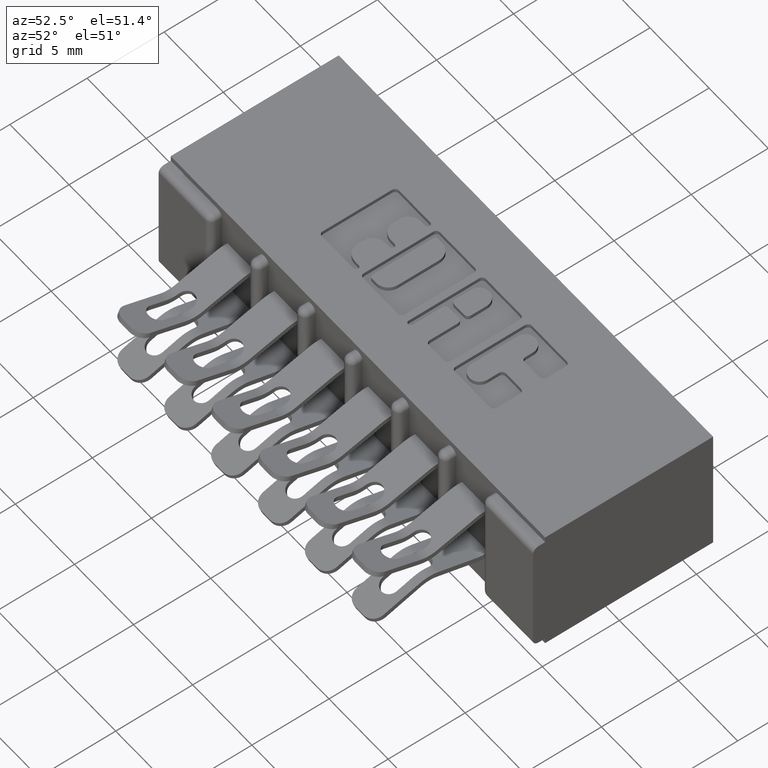
[diagram: clean part render]
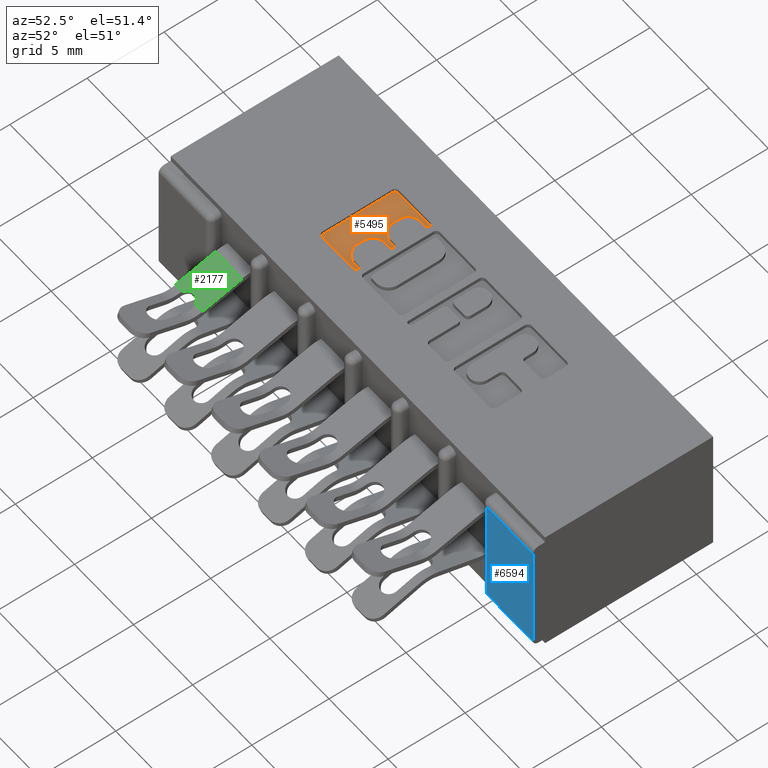
[diagram: same view with three faces highlighted in distinct colors, each labeled with its STEP entity id]
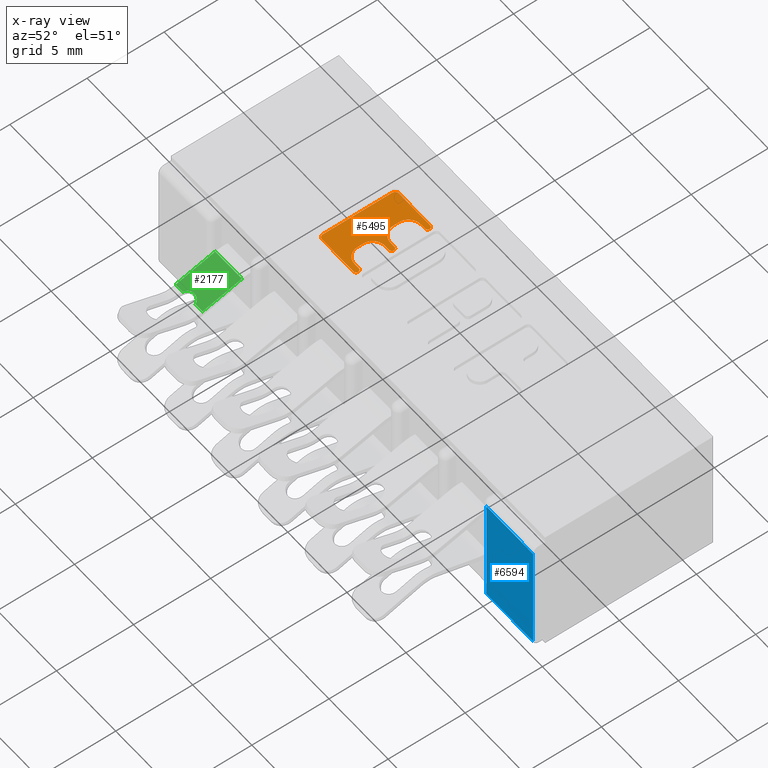
[diagram: x-ray of the same camera — body ghosted, the three highlighted faces saturated]
A machine part, auxiliary view with three faces highlighted in distinct colors.
The next image is the same camera in x-ray (body ghosted, the three faces saturated) — at least one of them is partly hidden behind the body in this view.
Their STEP definitions:

[orange] entity #5495 — the highlighted planar face has unit normal (0, 0, 1).
#74 = DIRECTION ( 'NONE',  ( 0.0000000000000000000, -1.000000000000000000, 0.0000000000000000000 ) ) ;
#175 = DIRECTION ( 'NONE',  ( 1.000000000000000000, 0.0000000000000000000, 0.0000000000000000000 ) ) ;
#191 = EDGE_CURVE ( 'NONE', #9915, #8784, #9637, .T. ) ;
#275 = LINE ( 'NONE', #9829, #7740 ) ;
#307 = VERTEX_POINT ( 'NONE', #3789 ) ;
#461 = CARTESIAN_POINT ( 'NONE',  ( 0.7610045756779737500, 0.2455000000000231700, -0.01000000000000000000 ) ) ;
#468 = ORIENTED_EDGE ( 'NONE', *, *, #8584, .T. ) ;
#576 = AXIS2_PLACEMENT_3D ( 'NONE', #806, #4319, #7650 ) ;
#643 = EDGE_CURVE ( 'NONE', #5747, #9515, #4340, .T. ) ;
#678 = DIRECTION ( 'NONE',  ( -0.0000000000000000000, 0.0000000000000000000, 1.000000000000000000 ) ) ;
#806 = CARTESIAN_POINT ( 'NONE',  ( 0.7541336065353102500, 0.2455000000000231700, -0.01000000000000000000 ) ) ;
#892 = CIRCLE ( 'NONE', #7469, 0.006870969142662229500 ) ;
#962 = VECTOR ( 'NONE', #5504, 39.37007874015748100 ) ;
#968 = VERTEX_POINT ( 'NONE', #1269 ) ;
#975 = ORIENTED_EDGE ( 'NONE', *, *, #2741, .F. ) ;
#984 = LINE ( 'NONE', #10345, #9291 ) ;
#1000 = AXIS2_PLACEMENT_3D ( 'NONE', #9095, #7402, #3938 ) ;
#1013 = DIRECTION ( 'NONE',  ( -0.0000000000000000000, 0.0000000000000000000, 1.000000000000000000 ) ) ;
#1065 = AXIS2_PLACEMENT_3D ( 'NONE', #10837, #2306, #3168 ) ;
#1160 = LINE ( 'NONE', #1514, #6492 ) ;
#1228 = VERTEX_POINT ( 'NONE', #10238 ) ;
#1269 = CARTESIAN_POINT ( 'NONE',  ( 0.7406370600051257500, 0.3299147637527385400, -0.01000000000000000000 ) ) ;
#1334 = DIRECTION ( 'NONE',  ( 1.000000000000000000, 0.0000000000000000000, 0.0000000000000000000 ) ) ;
#1366 = VERTEX_POINT ( 'NONE', #6070 ) ;
#1439 = DIRECTION ( 'NONE',  ( -0.0000000000000000000, 0.0000000000000000000, 1.000000000000000000 ) ) ;
#1480 = AXIS2_PLACEMENT_3D ( 'NONE', #4797, #1439, #1580 ) ;
#1510 = LINE ( 'NONE', #7800, #962 ) ;
#1514 = CARTESIAN_POINT ( 'NONE',  ( -1.013135022034653000E-015, 0.1473432979619833400, -0.01000000000000000000 ) ) ;
#1540 = CIRCLE ( 'NONE', #576, 0.006870969142663458500 ) ;
#1579 = ORIENTED_EDGE ( 'NONE', *, *, #191, .T. ) ;
#1580 = DIRECTION ( 'NONE',  ( 1.000000000000000000, 0.0000000000000000000, 0.0000000000000000000 ) ) ;
#1730 = EDGE_CURVE ( 'NONE', #3152, #5751, #7563, .T. ) ;
#2013 = CARTESIAN_POINT ( 'NONE',  ( 0.7541336065353515500, 0.3367857328953891000, -0.01000000000000000000 ) ) ;
#2016 = CIRCLE ( 'NONE', #1065, 0.006870969142663458500 ) ;
#2101 = CARTESIAN_POINT ( 'NONE',  ( 0.7406370600051098700, 0.1924953808994932000, -0.01000000000000000000 ) ) ;
#2137 = VERTEX_POINT ( 'NONE', #461 ) ;
#2306 = DIRECTION ( 'NONE',  ( -0.0000000000000000000, 0.0000000000000000000, 1.000000000000000000 ) ) ;
#2394 = CARTESIAN_POINT ( 'NONE',  ( 0.7406370600050843400, 0.2837811137948611500, -0.01000000000000000000 ) ) ;
#2434 = EDGE_CURVE ( 'NONE', #9195, #7914, #892, .T. ) ;
#2448 = ORIENTED_EDGE ( 'NONE', *, *, #7297, .T. ) ;
#2457 = AXIS2_PLACEMENT_3D ( 'NONE', #2394, #678, #8469 ) ;
#2531 = DIRECTION ( 'NONE',  ( -1.000000000000000000, 0.0000000000000000000, 0.0000000000000000000 ) ) ;
#2536 = EDGE_CURVE ( 'NONE', #968, #9634, #7022, .T. ) ;
#2673 = CARTESIAN_POINT ( 'NONE',  ( 0.6498421106199383500, 0.3338410318342129300, -0.01000000000000000000 ) ) ;
#2738 = CARTESIAN_POINT ( 'NONE',  ( 0.7541336064154146000, 0.1610852362473130200, -0.01000000000000000000 ) ) ;
#2741 = EDGE_CURVE ( 'NONE', #5747, #5037, #10505, .T. ) ;
#2771 = EDGE_CURVE ( 'NONE', #5751, #9195, #1160, .T. ) ;
#2786 = VERTEX_POINT ( 'NONE', #7697 ) ;
#2805 = DIRECTION ( 'NONE',  ( -1.000000000000000000, -1.189163988687022500E-013, 0.0000000000000000000 ) ) ;
#2848 = VERTEX_POINT ( 'NONE', #5242 ) ;
#2877 = DIRECTION ( 'NONE',  ( 1.000000000000000000, 0.0000000000000000000, 0.0000000000000000000 ) ) ;
#3047 = CARTESIAN_POINT ( 'NONE',  ( 0.6400264404161156700, 0.1571589681657927500, -0.01000000000000000000 ) ) ;
#3080 = ORIENTED_EDGE ( 'NONE', *, *, #6491, .T. ) ;
#3152 = VERTEX_POINT ( 'NONE', #3047 ) ;
#3168 = DIRECTION ( 'NONE',  ( 1.000000000000000000, 0.0000000000000000000, 0.0000000000000000000 ) ) ;
#3450 = LINE ( 'NONE', #9679, #5677 ) ;
#3502 = CARTESIAN_POINT ( 'NONE',  ( 0.7541336065353515500, 0.3367857328953891000, -0.01000000000000000000 ) ) ;
#3622 = DIRECTION ( 'NONE',  ( -0.0000000000000000000, 0.0000000000000000000, 1.000000000000000000 ) ) ;
#3707 = EDGE_CURVE ( 'NONE', #1228, #10980, #984, .T. ) ;
#3739 = EDGE_CURVE ( 'NONE', #2848, #9915, #10766, .T. ) ;
#3789 = CARTESIAN_POINT ( 'NONE',  ( 0.7406370600051098700, 0.1610852362473114100, -0.01000000000000000000 ) ) ;
#3841 = AXIS2_PLACEMENT_3D ( 'NONE', #5410, #1013, #4535 ) ;
#3927 = ORIENTED_EDGE ( 'NONE', *, *, #3739, .T. ) ;
#3938 = DIRECTION ( 'NONE',  ( 1.000000000000000000, 0.0000000000000000000, 0.0000000000000000000 ) ) ;
#4100 = CIRCLE ( 'NONE', #10052, 0.006870969142648433200 ) ;
#4319 = DIRECTION ( 'NONE',  ( -0.0000000000000000000, 0.0000000000000000000, 1.000000000000000000 ) ) ;
#4340 = LINE ( 'NONE', #11222, #6122 ) ;
#4456 = CIRCLE ( 'NONE', #6028, 0.006870969142662229500 ) ;
#4535 = DIRECTION ( 'NONE',  ( 1.000000000000000000, 0.0000000000000000000, 0.0000000000000000000 ) ) ;
#4536 = CARTESIAN_POINT ( 'NONE',  ( 0.7406370600050843400, 0.2523709691426866400, -0.01000000000000000000 ) ) ;
#4647 = EDGE_CURVE ( 'NONE', #2786, #10980, #7057, .T. ) ;
#4699 = CARTESIAN_POINT ( 'NONE',  ( 0.6498421106199383500, 0.3436567020380355600, -0.01000000000000000000 ) ) ;
#4711 = VECTOR ( 'NONE', #2805, 39.37007874015748100 ) ;
#4763 = AXIS2_PLACEMENT_3D ( 'NONE', #5960, #10283, #7571 ) ;
#4797 = CARTESIAN_POINT ( 'NONE',  ( 0.7406370600050843400, 0.2072188862052033700, -0.01000000000000000000 ) ) ;
#4827 = CARTESIAN_POINT ( 'NONE',  ( 0.7541336065353357900, 0.1542142671046507800, -0.01000000000000000000 ) ) ;
#4856 = FACE_OUTER_BOUND ( 'NONE', #7021, .T. ) ;
#4961 = EDGE_CURVE ( 'NONE', #2137, #1228, #2016, .T. ) ;
#5037 = VERTEX_POINT ( 'NONE', #7658 ) ;
#5071 = CARTESIAN_POINT ( 'NONE',  ( 0.6498421106199189200, 0.1473432979619878100, -0.01000000000000000000 ) ) ;
#5149 = ORIENTED_EDGE ( 'NONE', *, *, #4961, .T. ) ;
#5169 = CARTESIAN_POINT ( 'NONE',  ( 0.0000000000000000000, 0.3436567020380355600, -0.01000000000000000000 ) ) ;
#5212 = DIRECTION ( 'NONE',  ( -1.000000000000000000, 0.0000000000000000000, 0.0000000000000000000 ) ) ;
#5242 = CARTESIAN_POINT ( 'NONE',  ( 0.7541336065353515500, 0.3436567020380355600, -0.01000000000000000000 ) ) ;
#5255 = DIRECTION ( 'NONE',  ( 1.000000000000000000, 0.0000000000000000000, 0.0000000000000000000 ) ) ;
#5261 = ORIENTED_EDGE ( 'NONE', *, *, #4647, .F. ) ;
#5410 = CARTESIAN_POINT ( 'NONE',  ( 0.7406370600051257500, 0.2985046191005226200, -0.01000000000000000000 ) ) ;
#5495 = ADVANCED_FACE ( 'NONE', ( #4856 ), #7365, .T. ) ;
#5504 = DIRECTION ( 'NONE',  ( 0.0000000000000000000, 1.000000000000000000, -0.0000000000000000000 ) ) ;
#5677 = VECTOR ( 'NONE', #74, 39.37007874015748100 ) ;
#5733 = ORIENTED_EDGE ( 'NONE', *, *, #3707, .T. ) ;
#5747 = VERTEX_POINT ( 'NONE', #8509 ) ;
#5750 = ORIENTED_EDGE ( 'NONE', *, *, #2771, .T. ) ;
#5751 = VERTEX_POINT ( 'NONE', #5071 ) ;
#5939 = VECTOR ( 'NONE', #9563, 39.37007874015748100 ) ;
#5960 = CARTESIAN_POINT ( 'NONE',  ( 0.6498421106199224800, 0.1571589681657927500, -0.01000000000000000000 ) ) ;
#5964 = EDGE_CURVE ( 'NONE', #8547, #307, #7430, .T. ) ;
#5972 = CARTESIAN_POINT ( 'NONE',  ( 0.0000000000000000000, 0.3299147637527385400, -0.01000000000000000000 ) ) ;
#6028 = AXIS2_PLACEMENT_3D ( 'NONE', #4827, #10008, #9160 ) ;
#6054 = CARTESIAN_POINT ( 'NONE',  ( 0.7092269153529097100, 0.2985046191005226200, -0.01000000000000000000 ) ) ;
#6064 = AXIS2_PLACEMENT_3D ( 'NONE', #2101, #8316, #1334 ) ;
#6070 = CARTESIAN_POINT ( 'NONE',  ( 0.7610045756779999500, 0.3367857328953891000, -0.01000000000000000000 ) ) ;
#6122 = VECTOR ( 'NONE', #7830, 39.37007874015748100 ) ;
#6199 = EDGE_CURVE ( 'NONE', #8707, #307, #8633, .T. ) ;
#6351 = LINE ( 'NONE', #5972, #5939 ) ;
#6491 = EDGE_CURVE ( 'NONE', #968, #8767, #6351, .T. ) ;
#6492 = VECTOR ( 'NONE', #11066, 39.37007874015748100 ) ;
#6745 = VECTOR ( 'NONE', #2531, 39.37007874015748100 ) ;
#6831 = EDGE_CURVE ( 'NONE', #8784, #3152, #3450, .T. ) ;
#7021 = EDGE_LOOP ( 'NONE', ( #9133, #3080, #11185, #10479, #3927, #1579, #8302, #8876, #5750, #9518, #10722, #8961, #9746, #8217, #975, #10859, #2448, #5149, #5733, #5261, #468 ) ) ;
#7022 = CIRCLE ( 'NONE', #3841, 0.03141014465221592800 ) ;
#7057 = CIRCLE ( 'NONE', #2457, 0.03141014465217454400 ) ;
#7182 = DIRECTION ( 'NONE',  ( 1.000000000000000000, 0.0000000000000000000, 0.0000000000000000000 ) ) ;
#7195 = DIRECTION ( 'NONE',  ( 0.0000000000000000000, 1.000000000000000000, -0.0000000000000000000 ) ) ;
#7297 = EDGE_CURVE ( 'NONE', #9515, #2137, #1540, .T. ) ;
#7365 = PLANE ( 'NONE',  #1000 ) ;
#7402 = DIRECTION ( 'NONE',  ( -0.0000000000000000000, 0.0000000000000000000, 1.000000000000000000 ) ) ;
#7430 = LINE ( 'NONE', #10534, #4711 ) ;
#7469 = AXIS2_PLACEMENT_3D ( 'NONE', #10316, #7748, #5255 ) ;
#7563 = CIRCLE ( 'NONE', #4763, 0.009815670203805798900 ) ;
#7571 = DIRECTION ( 'NONE',  ( 1.000000000000000000, 0.0000000000000000000, 0.0000000000000000000 ) ) ;
#7626 = CARTESIAN_POINT ( 'NONE',  ( 0.7610045756779980600, 0.1542142671046507800, -0.01000000000000000000 ) ) ;
#7650 = DIRECTION ( 'NONE',  ( 1.000000000000000000, 0.0000000000000000000, 0.0000000000000000000 ) ) ;
#7658 = CARTESIAN_POINT ( 'NONE',  ( 0.7092269153529280300, 0.2072188862052033700, -0.01000000000000000000 ) ) ;
#7697 = CARTESIAN_POINT ( 'NONE',  ( 0.7092269153529097100, 0.2837811137948611500, -0.01000000000000000000 ) ) ;
#7740 = VECTOR ( 'NONE', #7195, 39.37007874015748100 ) ;
#7748 = DIRECTION ( 'NONE',  ( -0.0000000000000000000, 0.0000000000000000000, 1.000000000000000000 ) ) ;
#7800 = CARTESIAN_POINT ( 'NONE',  ( 0.7092269153529097100, 0.0000000000000000000, -0.01000000000000000000 ) ) ;
#7830 = DIRECTION ( 'NONE',  ( 1.000000000000000000, 0.0000000000000000000, 0.0000000000000000000 ) ) ;
#7914 = VERTEX_POINT ( 'NONE', #7626 ) ;
#8085 = DIRECTION ( 'NONE',  ( -0.0000000000000000000, 0.0000000000000000000, 1.000000000000000000 ) ) ;
#8217 = ORIENTED_EDGE ( 'NONE', *, *, #9282, .T. ) ;
#8302 = ORIENTED_EDGE ( 'NONE', *, *, #6831, .T. ) ;
#8316 = DIRECTION ( 'NONE',  ( -0.0000000000000000000, 0.0000000000000000000, 1.000000000000000000 ) ) ;
#8469 = DIRECTION ( 'NONE',  ( 1.000000000000000000, 0.0000000000000000000, 0.0000000000000000000 ) ) ;
#8509 = CARTESIAN_POINT ( 'NONE',  ( 0.7406370600050843400, 0.2386290308573596500, -0.01000000000000000000 ) ) ;
#8525 = CARTESIAN_POINT ( 'NONE',  ( 0.7541336064153890700, 0.2386290308573596500, -0.01000000000000000000 ) ) ;
#8547 = VERTEX_POINT ( 'NONE', #2738 ) ;
#8584 = EDGE_CURVE ( 'NONE', #2786, #9634, #1510, .T. ) ;
#8633 = CIRCLE ( 'NONE', #6064, 0.03141014465218178200 ) ;
#8707 = VERTEX_POINT ( 'NONE', #8899 ) ;
#8767 = VERTEX_POINT ( 'NONE', #9137 ) ;
#8784 = VERTEX_POINT ( 'NONE', #10818 ) ;
#8826 = DIRECTION ( 'NONE',  ( -0.0000000000000000000, 0.0000000000000000000, 1.000000000000000000 ) ) ;
#8836 = CIRCLE ( 'NONE', #9690, 0.006870969142648433200 ) ;
#8876 = ORIENTED_EDGE ( 'NONE', *, *, #1730, .T. ) ;
#8899 = CARTESIAN_POINT ( 'NONE',  ( 0.7092269153529280300, 0.1924953808994932000, -0.01000000000000000000 ) ) ;
#8961 = ORIENTED_EDGE ( 'NONE', *, *, #5964, .T. ) ;
#9095 = CARTESIAN_POINT ( 'NONE',  ( 0.0000000000000000000, 0.0000000000000000000, -0.01000000000000000000 ) ) ;
#9133 = ORIENTED_EDGE ( 'NONE', *, *, #2536, .F. ) ;
#9137 = CARTESIAN_POINT ( 'NONE',  ( 0.7541336065353516600, 0.3299147637527385400, -0.01000000000000000000 ) ) ;
#9160 = DIRECTION ( 'NONE',  ( 1.000000000000000000, 0.0000000000000000000, 0.0000000000000000000 ) ) ;
#9195 = VERTEX_POINT ( 'NONE', #9416 ) ;
#9282 = EDGE_CURVE ( 'NONE', #8707, #5037, #275, .T. ) ;
#9291 = VECTOR ( 'NONE', #5212, 39.37007874015748100 ) ;
#9301 = EDGE_CURVE ( 'NONE', #1366, #2848, #8836, .T. ) ;
#9313 = AXIS2_PLACEMENT_3D ( 'NONE', #2673, #3622, #175 ) ;
#9416 = CARTESIAN_POINT ( 'NONE',  ( 0.7541336064154146000, 0.1473432979619885300, -0.01000000000000000000 ) ) ;
#9515 = VERTEX_POINT ( 'NONE', #8525 ) ;
#9518 = ORIENTED_EDGE ( 'NONE', *, *, #2434, .T. ) ;
#9563 = DIRECTION ( 'NONE',  ( 1.000000000000000000, 0.0000000000000000000, 0.0000000000000000000 ) ) ;
#9634 = VERTEX_POINT ( 'NONE', #6054 ) ;
#9637 = CIRCLE ( 'NONE', #9313, 0.009815670203822599700 ) ;
#9679 = CARTESIAN_POINT ( 'NONE',  ( 0.6400264404161156700, 0.0000000000000000000, -0.01000000000000000000 ) ) ;
#9690 = AXIS2_PLACEMENT_3D ( 'NONE', #2013, #8085, #2877 ) ;
#9698 = EDGE_CURVE ( 'NONE', #8767, #1366, #4100, .T. ) ;
#9746 = ORIENTED_EDGE ( 'NONE', *, *, #6199, .F. ) ;
#9829 = CARTESIAN_POINT ( 'NONE',  ( 0.7092269153529280300, 0.0000000000000000000, -0.01000000000000000000 ) ) ;
#9915 = VERTEX_POINT ( 'NONE', #4699 ) ;
#10008 = DIRECTION ( 'NONE',  ( -0.0000000000000000000, 0.0000000000000000000, 1.000000000000000000 ) ) ;
#10052 = AXIS2_PLACEMENT_3D ( 'NONE', #3502, #8826, #7182 ) ;
#10238 = CARTESIAN_POINT ( 'NONE',  ( 0.7541336065353102500, 0.2523709691426866400, -0.01000000000000000000 ) ) ;
#10283 = DIRECTION ( 'NONE',  ( -0.0000000000000000000, 0.0000000000000000000, 1.000000000000000000 ) ) ;
#10316 = CARTESIAN_POINT ( 'NONE',  ( 0.7541336065353357900, 0.1542142671046507800, -0.01000000000000000000 ) ) ;
#10345 = CARTESIAN_POINT ( 'NONE',  ( 0.0000000000000000000, 0.2523709691426866400, -0.01000000000000000000 ) ) ;
#10479 = ORIENTED_EDGE ( 'NONE', *, *, #9301, .T. ) ;
#10505 = CIRCLE ( 'NONE', #1480, 0.03141014465215624000 ) ;
#10534 = CARTESIAN_POINT ( 'NONE',  ( -1.915567620543394800E-014, 0.1610852362472233500, -0.01000000000000000000 ) ) ;
#10722 = ORIENTED_EDGE ( 'NONE', *, *, #11020, .T. ) ;
#10766 = LINE ( 'NONE', #5169, #6745 ) ;
#10818 = CARTESIAN_POINT ( 'NONE',  ( 0.6400264404161156700, 0.3338410318342129300, -0.01000000000000000000 ) ) ;
#10837 = CARTESIAN_POINT ( 'NONE',  ( 0.7541336065353102500, 0.2455000000000231700, -0.01000000000000000000 ) ) ;
#10859 = ORIENTED_EDGE ( 'NONE', *, *, #643, .T. ) ;
#10980 = VERTEX_POINT ( 'NONE', #4536 ) ;
#11020 = EDGE_CURVE ( 'NONE', #7914, #8547, #4456, .T. ) ;
#11066 = DIRECTION ( 'NONE',  ( 1.000000000000000000, 6.876017002796124400E-015, 0.0000000000000000000 ) ) ;
#11185 = ORIENTED_EDGE ( 'NONE', *, *, #9698, .T. ) ;
#11222 = CARTESIAN_POINT ( 'NONE',  ( 0.0000000000000000000, 0.2386290308573596500, -0.01000000000000000000 ) ) ;

[blue] entity #6594 — the highlighted planar face has unit normal (0, -1, 0).
#830 = EDGE_CURVE ( 'NONE', #4159, #9651, #5151, .T. ) ;
#1007 = FACE_OUTER_BOUND ( 'NONE', #8685, .T. ) ;
#1076 = DIRECTION ( 'NONE',  ( 0.0000000000000000000, -0.0000000000000000000, -1.000000000000000000 ) ) ;
#1358 = ORIENTED_EDGE ( 'NONE', *, *, #6423, .T. ) ;
#1810 = VECTOR ( 'NONE', #11175, 39.37007874015748100 ) ;
#1841 = CARTESIAN_POINT ( 'NONE',  ( 1.544000000000000700, 0.0000000000000000000, 0.0000000000000000000 ) ) ;
#2302 = CARTESIAN_POINT ( 'NONE',  ( 1.544000000000000700, 0.0000000000000000000, -0.02999999999999995400 ) ) ;
#2395 = ORIENTED_EDGE ( 'NONE', *, *, #3693, .T. ) ;
#2809 = CARTESIAN_POINT ( 'NONE',  ( 0.0000000000000000000, 0.0000000000000000000, -0.02999999999999995400 ) ) ;
#2881 = ORIENTED_EDGE ( 'NONE', *, *, #830, .T. ) ;
#3328 = CARTESIAN_POINT ( 'NONE',  ( 1.389000000000000200, 0.0000000000000000000, -0.3130000000000000600 ) ) ;
#3480 = LINE ( 'NONE', #1841, #7832 ) ;
#3656 = DIRECTION ( 'NONE',  ( -1.000000000000000000, 0.0000000000000000000, 0.0000000000000000000 ) ) ;
#3693 = EDGE_CURVE ( 'NONE', #9651, #7911, #9954, .T. ) ;
#3849 = CARTESIAN_POINT ( 'NONE',  ( 1.842000000000000700, 0.0000000000000000000, -0.3130000000000000600 ) ) ;
#4159 = VERTEX_POINT ( 'NONE', #2302 ) ;
#4518 = DIRECTION ( 'NONE',  ( 0.0000000000000000000, -1.000000000000000000, 0.0000000000000000000 ) ) ;
#4880 = VECTOR ( 'NONE', #3656, 39.37007874015748100 ) ;
#4987 = CARTESIAN_POINT ( 'NONE',  ( 1.389000000000000200, 0.0000000000000000000, -0.3130000000000000600 ) ) ;
#5151 = LINE ( 'NONE', #2809, #4880 ) ;
#5427 = EDGE_CURVE ( 'NONE', #9382, #4159, #3480, .T. ) ;
#5606 = DIRECTION ( 'NONE',  ( 1.000000000000000000, -0.0000000000000000000, -0.0000000000000000000 ) ) ;
#5755 = CARTESIAN_POINT ( 'NONE',  ( 1.544000000000000700, 0.0000000000000000000, -0.3130000000000000600 ) ) ;
#6223 = VECTOR ( 'NONE', #5606, 39.37007874015748100 ) ;
#6322 = PLANE ( 'NONE',  #11183 ) ;
#6423 = EDGE_CURVE ( 'NONE', #7911, #9382, #11196, .T. ) ;
#6594 = ADVANCED_FACE ( 'NONE', ( #1007 ), #6322, .T. ) ;
#6721 = ORIENTED_EDGE ( 'NONE', *, *, #5427, .T. ) ;
#6852 = CARTESIAN_POINT ( 'NONE',  ( 1.389000000000000200, 0.0000000000000000000, -0.02999999999999995400 ) ) ;
#7832 = VECTOR ( 'NONE', #7916, 39.37007874015748100 ) ;
#7911 = VERTEX_POINT ( 'NONE', #4987 ) ;
#7916 = DIRECTION ( 'NONE',  ( -0.0000000000000000000, -0.0000000000000000000, 1.000000000000000000 ) ) ;
#8685 = EDGE_LOOP ( 'NONE', ( #6721, #2881, #2395, #1358 ) ) ;
#9382 = VERTEX_POINT ( 'NONE', #5755 ) ;
#9651 = VERTEX_POINT ( 'NONE', #6852 ) ;
#9703 = CARTESIAN_POINT ( 'NONE',  ( 0.0000000000000000000, 0.0000000000000000000, -0.3430000000000000300 ) ) ;
#9954 = LINE ( 'NONE', #3328, #1810 ) ;
#11175 = DIRECTION ( 'NONE',  ( -0.0000000000000000000, -0.0000000000000000000, -1.000000000000000000 ) ) ;
#11183 = AXIS2_PLACEMENT_3D ( 'NONE', #9703, #4518, #1076 ) ;
#11196 = LINE ( 'NONE', #3849, #6223 ) ;

[green] entity #2177 — the highlighted planar face has unit normal (-0, 0.2843, -0.9587).
#40 = EDGE_CURVE ( 'NONE', #10427, #5655, #9103, .T. ) ;
#200 = ORIENTED_EDGE ( 'NONE', *, *, #1339, .T. ) ;
#350 = ORIENTED_EDGE ( 'NONE', *, *, #5958, .T. ) ;
#429 = VERTEX_POINT ( 'NONE', #4971 ) ;
#539 = EDGE_CURVE ( 'NONE', #3238, #4554, #3809, .T. ) ;
#739 = AXIS2_PLACEMENT_3D ( 'NONE', #8766, #10412, #6935 ) ;
#863 = CIRCLE ( 'NONE', #4929, 0.02299999999999998600 ) ;
#967 = EDGE_CURVE ( 'NONE', #5655, #11028, #11224, .T. ) ;
#1146 = ORIENTED_EDGE ( 'NONE', *, *, #539, .T. ) ;
#1174 = FACE_OUTER_BOUND ( 'NONE', #10328, .T. ) ;
#1227 = DIRECTION ( 'NONE',  ( 9.688197992245554000E-030, 0.2842868351914477600, 0.9587392739096646200 ) ) ;
#1339 = EDGE_CURVE ( 'NONE', #429, #3238, #9889, .T. ) ;
#1419 = ORIENTED_EDGE ( 'NONE', *, *, #967, .F. ) ;
#1558 = CARTESIAN_POINT ( 'NONE',  ( -0.02116601048851716300, -0.2109527820421830700, 0.03723553135205488100 ) ) ;
#1688 = DIRECTION ( 'NONE',  ( 1.937639598449110000E-029, 0.9587392739096645100, -0.2842868351914477600 ) ) ;
#1733 = VECTOR ( 'NONE', #4176, 39.37007874015747400 ) ;
#2099 = CARTESIAN_POINT ( 'NONE',  ( 0.0000000000000000000, -0.2195814355073599500, 0.03979411286877793100 ) ) ;
#2177 = ADVANCED_FACE ( 'NONE', ( #1174 ), #8045, .F. ) ;
#2543 = LINE ( 'NONE', #6781, #1733 ) ;
#2854 = CARTESIAN_POINT ( 'NONE',  ( 0.04449999999999893600, -0.1100000000000207900, 0.007300858087226821600 ) ) ;
#3238 = VERTEX_POINT ( 'NONE', #1558 ) ;
#3315 = CARTESIAN_POINT ( 'NONE',  ( 0.04449999999999893600, -0.2109527820421729600, 0.03723553135205488100 ) ) ;
#3384 = DIRECTION ( 'NONE',  ( -1.000000000000000000, -1.937639598449110200E-029, -8.168727798041029500E-047 ) ) ;
#3431 = CARTESIAN_POINT ( 'NONE',  ( 0.04449999999999893600, -0.1100000000000207900, 0.007300858087226821600 ) ) ;
#3501 = EDGE_CURVE ( 'NONE', #4487, #429, #863, .T. ) ;
#3537 = CARTESIAN_POINT ( 'NONE',  ( 0.04449999999999893600, -0.2109527820421729600, 0.03723553135205488100 ) ) ;
#3687 = AXIS2_PLACEMENT_3D ( 'NONE', #3992, #4477, #4773 ) ;
#3809 = LINE ( 'NONE', #5265, #10159 ) ;
#3904 = LINE ( 'NONE', #3537, #10666 ) ;
#3992 = CARTESIAN_POINT ( 'NONE',  ( 0.04449999999999893600, -0.1100000000000207900, 0.007300858087226821600 ) ) ;
#4176 = DIRECTION ( 'NONE',  ( 1.937639598449110000E-029, 0.9587392739096645100, -0.2842868351914477600 ) ) ;
#4477 = DIRECTION ( 'NONE',  ( 9.688197992245552600E-030, 0.2842868351914477600, 0.9587392739096645100 ) ) ;
#4487 = VERTEX_POINT ( 'NONE', #8024 ) ;
#4554 = VERTEX_POINT ( 'NONE', #5588 ) ;
#4773 = DIRECTION ( 'NONE',  ( -1.937639598449110000E-029, -0.9587392739096644000, 0.2842868351914477100 ) ) ;
#4929 = AXIS2_PLACEMENT_3D ( 'NONE', #2099, #1227, #5578 ) ;
#4971 = CARTESIAN_POINT ( 'NONE',  ( 0.0000000000000000000, -0.1975304322074376800, 0.03325551565937463100 ) ) ;
#5074 = EDGE_CURVE ( 'NONE', #4554, #11028, #2543, .T. ) ;
#5265 = CARTESIAN_POINT ( 'NONE',  ( 0.04449999999999893600, -0.2109527820421729600, 0.03723553135205488100 ) ) ;
#5578 = DIRECTION ( 'NONE',  ( -1.937639598449111400E-029, -0.9587392739096644000, 0.2842868351914481000 ) ) ;
#5588 = CARTESIAN_POINT ( 'NONE',  ( -0.04450000000008089200, -0.2109527820421923400, 0.03723553135205488100 ) ) ;
#5655 = VERTEX_POINT ( 'NONE', #8329 ) ;
#5958 = EDGE_CURVE ( 'NONE', #10427, #4487, #3904, .T. ) ;
#6188 = ORIENTED_EDGE ( 'NONE', *, *, #5074, .T. ) ;
#6781 = CARTESIAN_POINT ( 'NONE',  ( -0.04449999999999893600, -0.1100000000000321600, 0.007300858087226821600 ) ) ;
#6934 = VECTOR ( 'NONE', #9016, 39.37007874015748100 ) ;
#6935 = DIRECTION ( 'NONE',  ( -1.937639598449111400E-029, -0.9587392739096644000, 0.2842868351914481000 ) ) ;
#7923 = ORIENTED_EDGE ( 'NONE', *, *, #40, .F. ) ;
#8024 = CARTESIAN_POINT ( 'NONE',  ( 0.02116601048851716300, -0.2109527820421729600, 0.03723553135205488100 ) ) ;
#8045 = PLANE ( 'NONE',  #3687 ) ;
#8329 = CARTESIAN_POINT ( 'NONE',  ( 0.04449999999999893600, -0.1100000000000207900, 0.007300858087226821600 ) ) ;
#8766 = CARTESIAN_POINT ( 'NONE',  ( 0.0000000000000000000, -0.2195814355073599500, 0.03979411286877793100 ) ) ;
#9016 = DIRECTION ( 'NONE',  ( -1.000000000000000000, -1.937639598449110200E-029, -8.168727798041029500E-047 ) ) ;
#9103 = LINE ( 'NONE', #3431, #9372 ) ;
#9117 = CARTESIAN_POINT ( 'NONE',  ( -0.04449999999999893600, -0.1100000000000321600, 0.007300858087226821600 ) ) ;
#9372 = VECTOR ( 'NONE', #1688, 39.37007874015747400 ) ;
#9725 = DIRECTION ( 'NONE',  ( -1.000000000000000000, -1.937639598449110200E-029, -8.168727798041029500E-047 ) ) ;
#9889 = CIRCLE ( 'NONE', #739, 0.02299999999999998600 ) ;
#10159 = VECTOR ( 'NONE', #3384, 39.37007874015748100 ) ;
#10328 = EDGE_LOOP ( 'NONE', ( #350, #11150, #200, #1146, #6188, #1419, #7923 ) ) ;
#10412 = DIRECTION ( 'NONE',  ( 9.688197992245554000E-030, 0.2842868351914477600, 0.9587392739096646200 ) ) ;
#10427 = VERTEX_POINT ( 'NONE', #3315 ) ;
#10666 = VECTOR ( 'NONE', #9725, 39.37007874015748100 ) ;
#11028 = VERTEX_POINT ( 'NONE', #9117 ) ;
#11150 = ORIENTED_EDGE ( 'NONE', *, *, #3501, .T. ) ;
#11224 = LINE ( 'NONE', #2854, #6934 ) ;